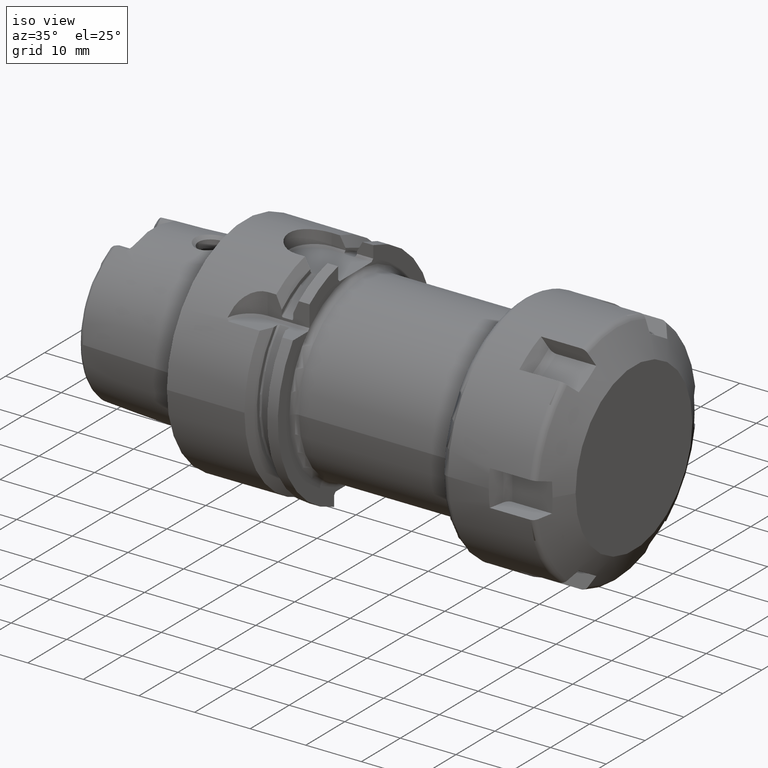
[diagram: clean part render]
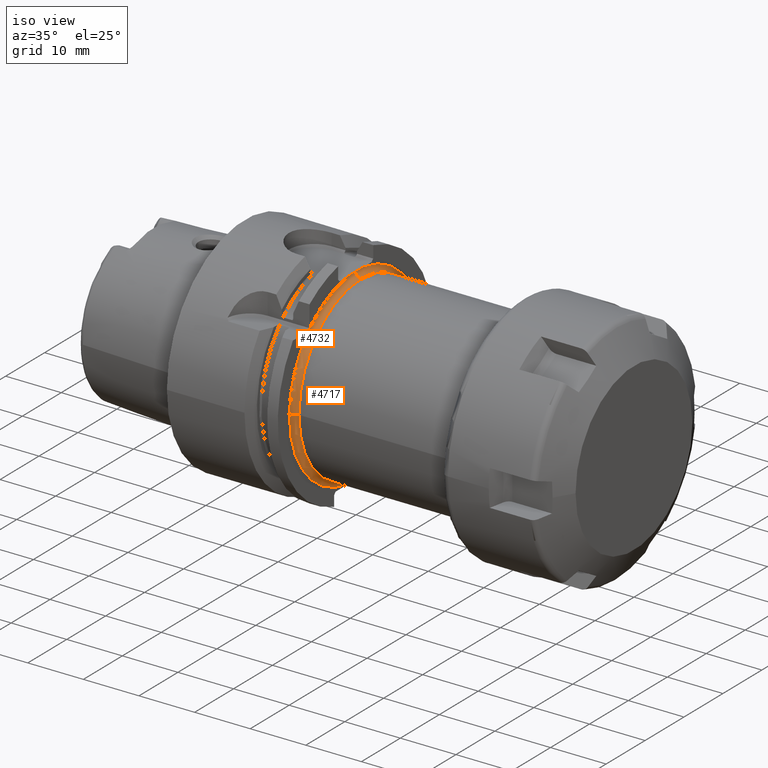
[diagram: same view with one multi-face feature highlighted, each face labeled with its STEP entity id]
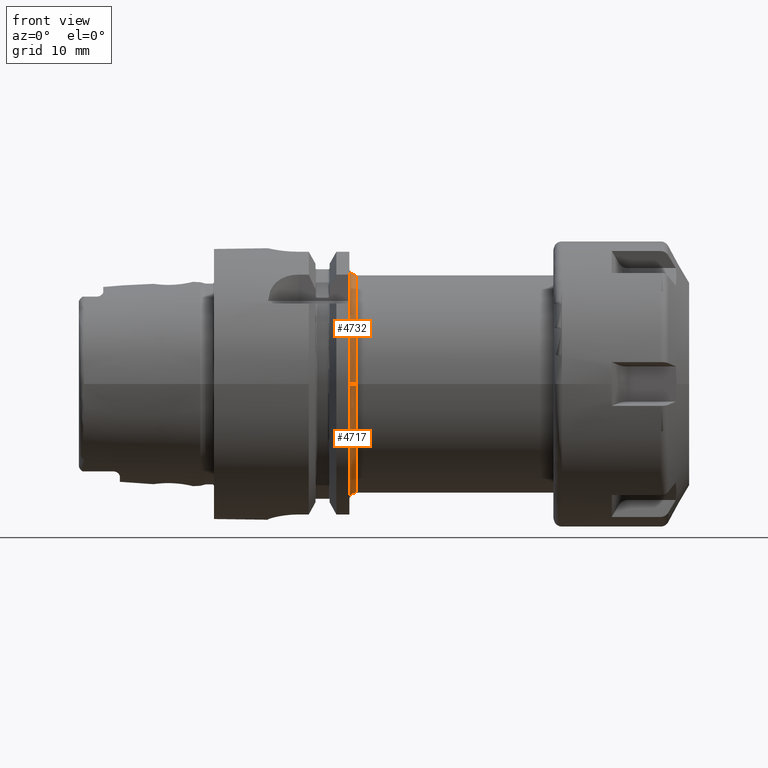
[diagram: same view with one multi-face feature highlighted, each face labeled with its STEP entity id]
A machine part, iso view. The highlighted faces form ONE feature: a constant-radius fillet chain: 2 tangent blend faces with common blend radius 1 mm. The faces share edges in the B-rep.
A second angle (front view) of the same feature is appended — it is thin or edge-on in the first view.
Their STEP definitions:
[1] entity #4717 (Torus):
#1376=CARTESIAN_POINT('',(1.995E1,0.E0,0.E0));
#1377=DIRECTION('',(1.E0,0.E0,0.E0));
#1378=DIRECTION('',(0.E0,-1.E0,0.E0));
#1379=AXIS2_PLACEMENT_3D('',#1376,#1377,#1378);
#1410=CARTESIAN_POINT('',(1.995E1,1.841179334203E0,-1.690000340914E1));
#1411=CARTESIAN_POINT('',(1.995E1,1.431241531863E0,-1.690000340914E1));
#1412=CARTESIAN_POINT('',(1.995527849257E1,6.119786051554E-1,
-1.689999970826E1));
#1413=CARTESIAN_POINT('',(1.995527849240E1,-6.120022606854E-1,
-1.689999590739E1));
#1414=CARTESIAN_POINT('',(1.995E1,-1.431170655342E0,-1.690000974393E1));
#1415=CARTESIAN_POINT('',(1.995E1,-1.841108446423E0,-1.690000974393E1));
#1417=CARTESIAN_POINT('',(2.095E1,-1.7E1,-1.169897512199E-14));
#1418=DIRECTION('',(0.E0,0.E0,-1.E0));
#1419=DIRECTION('',(-1.E0,1.065814103640E-14,0.E0));
#1420=AXIS2_PLACEMENT_3D('',#1417,#1418,#1419);
#1422=CARTESIAN_POINT('',(2.095E1,0.E0,0.E0));
#1423=DIRECTION('',(1.E0,0.E0,0.E0));
#1424=DIRECTION('',(0.E0,-1.E0,0.E0));
#1425=AXIS2_PLACEMENT_3D('',#1422,#1423,#1424);
#1427=CARTESIAN_POINT('',(1.995E1,1.841110329447E0,1.690000974646E1));
#1428=CARTESIAN_POINT('',(1.995E1,1.637498604615E0,1.690000974646E1));
#1429=CARTESIAN_POINT('',(1.995142284999E1,1.229742926640E0,1.689999545165E1));
#1430=CARTESIAN_POINT('',(1.995422145782E1,6.145415481959E-1,1.690000129953E1));
#1431=CARTESIAN_POINT('',(1.995501251841E1,2.049440697277E-1,1.69E1));
#1432=CARTESIAN_POINT('',(1.995501256289E1,3.649994849731E-5,1.69E1));
#1434=CARTESIAN_POINT('',(1.995E1,0.E0,0.E0));
#1435=DIRECTION('',(-1.E0,0.E0,0.E0));
#1436=DIRECTION('',(0.E0,1.083063943419E-1,9.941175609276E-1));
#1437=AXIS2_PLACEMENT_3D('',#1434,#1435,#1436);
#1439=CARTESIAN_POINT('',(2.095E1,3.671592452746E-5,1.699999999996E1));
#1440=DIRECTION('',(0.E0,-9.999999999977E-1,2.159760266321E-6));
#1441=DIRECTION('',(-9.949874371106E-1,-2.159760265470E-7,-9.999999996036E-2));
#1442=AXIS2_PLACEMENT_3D('',#1439,#1440,#1441);
#1451=CARTESIAN_POINT('',(2.095E1,0.E0,0.E0));
#1452=DIRECTION('',(1.E0,0.E0,0.E0));
#1453=DIRECTION('',(0.E0,1.E0,0.E0));
#1454=AXIS2_PLACEMENT_3D('',#1451,#1452,#1453);
#3187=CARTESIAN_POINT('',(1.995501256289E1,3.649994850092E-5,1.69E1));
#3188=CARTESIAN_POINT('',(2.095E1,3.455616426114E-5,1.599999999996E1));
#3189=VERTEX_POINT('',#3187);
#3190=VERTEX_POINT('',#3188);
#3191=CARTESIAN_POINT('',(2.095E1,1.6E1,0.E0));
#3192=VERTEX_POINT('',#3191);
#3193=CARTESIAN_POINT('',(2.095E1,-1.6E1,-2.124393808399E-12));
#3194=VERTEX_POINT('',#3193);
#3195=CARTESIAN_POINT('',(1.995E1,-1.7E1,-1.926283225200E-14));
#3196=CARTESIAN_POINT('',(1.995E1,-1.841203051942E0,-1.689999915152E1));
#3197=VERTEX_POINT('',#3195);
#3198=VERTEX_POINT('',#3196);
#3201=CARTESIAN_POINT('',(1.995E1,1.841208703812E0,1.689999853577E1));
#3202=CARTESIAN_POINT('',(1.995E1,1.841240812260E0,-1.689999503761E1));
#3203=VERTEX_POINT('',#3201);
#3204=VERTEX_POINT('',#3202);
#4697=CARTESIAN_POINT('',(2.095E1,0.E0,0.E0));
#4698=DIRECTION('',(1.E0,0.E0,0.E0));
#4699=DIRECTION('',(0.E0,9.999884548084E-1,-4.805231507475E-3));
#4700=AXIS2_PLACEMENT_3D('',#4697,#4698,#4699);
#4701=TOROIDAL_SURFACE('',#4700,1.7E1,1.E0);
#4702=ORIENTED_EDGE('',*,*,#4611,.T.);
#4703=ORIENTED_EDGE('',*,*,#4673,.F.);
#4705=ORIENTED_EDGE('',*,*,#4704,.T.);
#4707=ORIENTED_EDGE('',*,*,#4706,.T.);
#4709=ORIENTED_EDGE('',*,*,#4708,.T.);
#4711=ORIENTED_EDGE('',*,*,#4710,.F.);
#4713=ORIENTED_EDGE('',*,*,#4712,.F.);
#4714=ORIENTED_EDGE('',*,*,#4651,.T.);
#4715=EDGE_LOOP('',(#4702,#4703,#4705,#4707,#4709,#4711,#4713,#4714));
#4716=FACE_OUTER_BOUND('',#4715,.F.);
#4717=ADVANCED_FACE('',(#4716),#4701,.F.);
#1380=CIRCLE('',#1379,1.7E1);
#1416=B_SPLINE_CURVE_WITH_KNOTS('',3,(#1410,#1411,#1412,#1413,#1414,#1415),
.UNSPECIFIED.,.F.,.F.,(4,1,1,4),(0.E0,3.333333333333E-1,6.666666666667E-1,1.E0),
.UNSPECIFIED.);
#1421=CIRCLE('',#1420,1.E0);
#1426=CIRCLE('',#1425,1.6E1);
#1433=B_SPLINE_CURVE_WITH_KNOTS('',3,(#1427,#1428,#1429,#1430,#1431,#1432),
.UNSPECIFIED.,.F.,.F.,(4,1,1,4),(0.E0,3.333333333333E-1,6.666666666667E-1,1.E0),
.UNSPECIFIED.);
#1438=CIRCLE('',#1437,1.7E1);
#1443=CIRCLE('',#1442,1.E0);
#1455=CIRCLE('',#1454,1.6E1);
#4611=EDGE_CURVE('',#3204,#3198,#1416,.T.);
#4651=EDGE_CURVE('',#3203,#3204,#1438,.T.);
#4673=EDGE_CURVE('',#3197,#3198,#1380,.T.);
#4704=EDGE_CURVE('',#3197,#3194,#1421,.T.);
#4706=EDGE_CURVE('',#3194,#3192,#1426,.T.);
#4708=EDGE_CURVE('',#3192,#3190,#1455,.T.);
#4710=EDGE_CURVE('',#3189,#3190,#1443,.T.);
#4712=EDGE_CURVE('',#3203,#3189,#1433,.T.);
[2] entity #4732 (Torus):
#1405=CARTESIAN_POINT('',(1.995E1,0.E0,0.E0));
#1406=DIRECTION('',(1.E0,0.E0,0.E0));
#1407=DIRECTION('',(0.E0,-1.083082352183E-1,9.941173603674E-1));
#1408=AXIS2_PLACEMENT_3D('',#1405,#1406,#1407);
#1417=CARTESIAN_POINT('',(2.095E1,-1.7E1,-1.169897512199E-14));
#1418=DIRECTION('',(0.E0,0.E0,-1.E0));
#1419=DIRECTION('',(-1.E0,1.065814103640E-14,0.E0));
#1420=AXIS2_PLACEMENT_3D('',#1417,#1418,#1419);
#1439=CARTESIAN_POINT('',(2.095E1,3.671592452746E-5,1.699999999996E1));
#1440=DIRECTION('',(0.E0,-9.999999999977E-1,2.159760266321E-6));
#1441=DIRECTION('',(-9.949874371106E-1,-2.159760265470E-7,-9.999999996036E-2));
#1442=AXIS2_PLACEMENT_3D('',#1439,#1440,#1441);
#1444=CARTESIAN_POINT('',(1.995501256289E1,3.649994849731E-5,1.69E1));
#1445=CARTESIAN_POINT('',(1.995501260737E1,-2.048998096686E-1,1.69E1));
#1446=CARTESIAN_POINT('',(1.995422157143E1,-6.145520919928E-1,
1.690000045866E1));
#1447=CARTESIAN_POINT('',(1.995142189411E1,-1.229903473734E0,1.689999839469E1));
#1448=CARTESIAN_POINT('',(1.995E1,-1.637652701542E0,1.690000343994E1));
#1449=CARTESIAN_POINT('',(1.995E1,-1.841178777119E0,1.690000343994E1));
#1461=CARTESIAN_POINT('',(2.095E1,0.E0,0.E0));
#1462=DIRECTION('',(1.E0,0.E0,0.E0));
#1463=DIRECTION('',(0.E0,7.752816141376E-6,9.999999999699E-1));
#1464=AXIS2_PLACEMENT_3D('',#1461,#1462,#1463);
#3187=CARTESIAN_POINT('',(1.995501256289E1,3.649994850092E-5,1.69E1));
#3188=CARTESIAN_POINT('',(2.095E1,3.455616426114E-5,1.599999999996E1));
#3189=VERTEX_POINT('',#3187);
#3190=VERTEX_POINT('',#3188);
#3193=CARTESIAN_POINT('',(2.095E1,-1.6E1,-2.124393808399E-12));
#3194=VERTEX_POINT('',#3193);
#3195=CARTESIAN_POINT('',(1.995E1,-1.7E1,-1.926283225200E-14));
#3197=VERTEX_POINT('',#3195);
#3199=CARTESIAN_POINT('',(1.995E1,-1.841239998711E0,1.689999512625E1));
#3200=VERTEX_POINT('',#3199);
#4718=CARTESIAN_POINT('',(2.095E1,0.E0,0.E0));
#4719=DIRECTION('',(1.E0,0.E0,0.E0));
#4720=DIRECTION('',(0.E0,1.485959642860E-3,-9.999988959614E-1));
#4721=AXIS2_PLACEMENT_3D('',#4718,#4719,#4720);
#4722=TOROIDAL_SURFACE('',#4721,1.7E1,1.E0);
#4723=ORIENTED_EDGE('',*,*,#4710,.T.);
#4725=ORIENTED_EDGE('',*,*,#4724,.T.);
#4726=ORIENTED_EDGE('',*,*,#4704,.F.);
#4727=ORIENTED_EDGE('',*,*,#4692,.F.);
#4729=ORIENTED_EDGE('',*,*,#4728,.F.);
#4730=EDGE_LOOP('',(#4723,#4725,#4726,#4727,#4729));
#4731=FACE_OUTER_BOUND('',#4730,.F.);
#4732=ADVANCED_FACE('',(#4731),#4722,.F.);
#1409=CIRCLE('',#1408,1.7E1);
#1421=CIRCLE('',#1420,1.E0);
#1443=CIRCLE('',#1442,1.E0);
#1450=B_SPLINE_CURVE_WITH_KNOTS('',3,(#1444,#1445,#1446,#1447,#1448,#1449),
.UNSPECIFIED.,.F.,.F.,(4,1,1,4),(0.E0,3.333333333333E-1,6.666666666667E-1,1.E0),
.UNSPECIFIED.);
#1465=CIRCLE('',#1464,1.6E1);
#4692=EDGE_CURVE('',#3200,#3197,#1409,.T.);
#4704=EDGE_CURVE('',#3197,#3194,#1421,.T.);
#4710=EDGE_CURVE('',#3189,#3190,#1443,.T.);
#4724=EDGE_CURVE('',#3190,#3194,#1465,.T.);
#4728=EDGE_CURVE('',#3189,#3200,#1450,.T.);